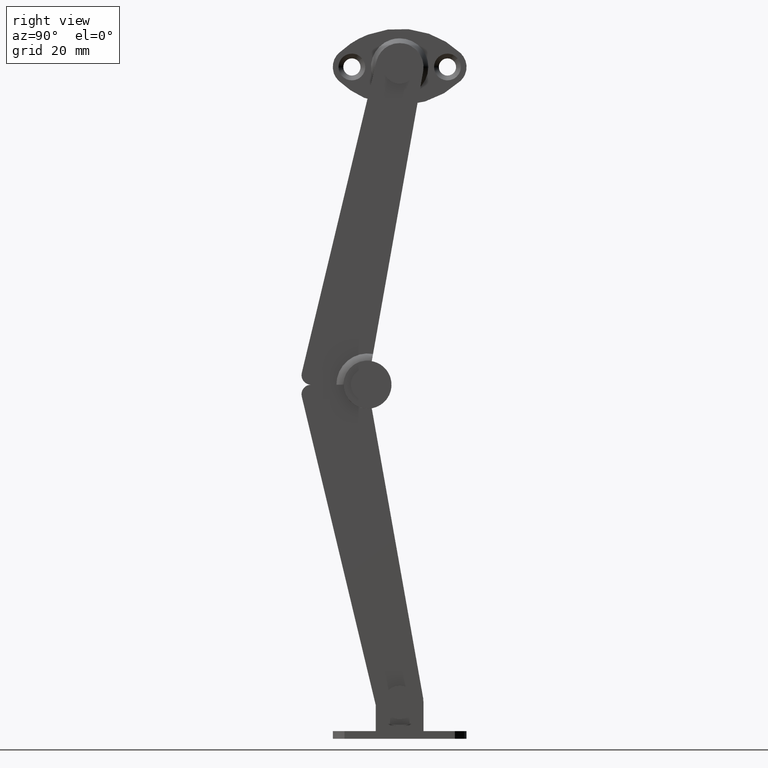
[diagram: clean part render]
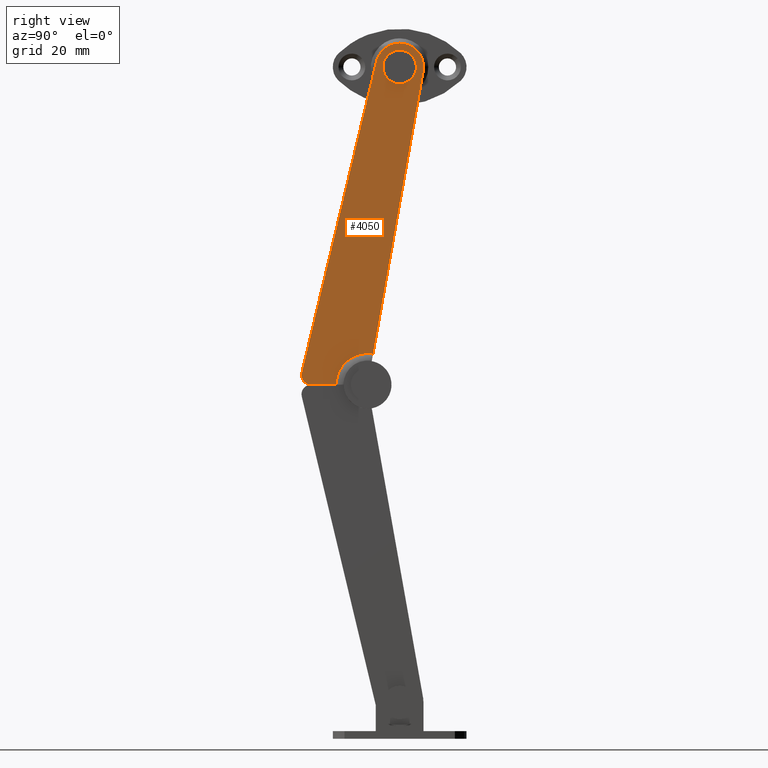
[diagram: same view with one face highlighted and labeled with its STEP entity id]
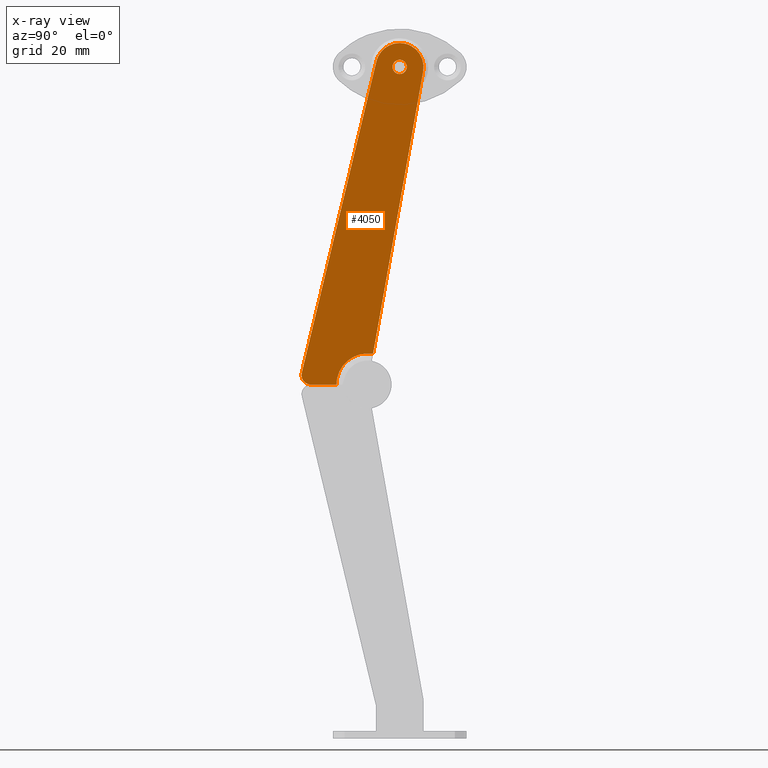
[diagram: x-ray of the same camera — body ghosted, the highlighted face saturated]
A machine part, right view. The second image highlights one B-rep face of the part: STEP entity #4050.
The next image is the same camera in x-ray: the body ghosted, the highlighted face saturated — about 0% of this face is hidden behind the body in this view.
In plain terms, the highlighted face is a freeform B-spline surface patch.
Its self-contained STEP definition (entity closure, byte-faithful):
#3359=CARTESIAN_POINT('',(7.099997999999999,1.105916866555809,67.513385768801243));
#3360=VERTEX_POINT('',#3359);
#3366=CARTESIAN_POINT('',(7.099997999999999,6.498705E-014,68.0));
#3367=VERTEX_POINT('',#3366);
#3368=CARTESIAN_POINT('',(7.099997999999999,1.105916866555809,67.513385768801243));
#3369=CARTESIAN_POINT('',(7.099997999999991,0.983490303701460,67.647201367064554));
#3370=CARTESIAN_POINT('',(7.099998000000005,0.647283021847330,67.901218537202709));
#3371=CARTESIAN_POINT('',(7.099998000000002,0.233254701580805,68.000448523563151));
#3372=CARTESIAN_POINT('',(7.099997999999999,6.498705E-014,68.0));
#3373=B_SPLINE_CURVE_WITH_KNOTS('',3,(#3368,#3369,#3370,#3371,#3372),.UNSPECIFIED.,.F.,.U.,(4,1,4),(0.000000109818222,0.544085645837434,1.243582495991023),.UNSPECIFIED.);
#3374=EDGE_CURVE('',#3360,#3367,#3373,.T.);
#3376=CARTESIAN_POINT('',(7.099997999999999,-1.499999999995145,66.499996209384861));
#3377=VERTEX_POINT('',#3376);
#3378=CARTESIAN_POINT('',(7.099997999999999,6.498705E-014,68.0));
#3379=CARTESIAN_POINT('',(7.099997999999986,-0.220957477144525,68.000330736097212));
#3380=CARTESIAN_POINT('',(7.099998000000055,-0.588814000005480,67.917141233669483));
#3381=CARTESIAN_POINT('',(7.099997999999930,-1.011692650551597,67.634487440824344));
#3382=CARTESIAN_POINT('',(7.099998000000051,-1.282787836130886,67.312306279088872));
#3383=CARTESIAN_POINT('',(7.099998000000010,-1.458089277904064,66.929482260045518));
#3384=CARTESIAN_POINT('',(7.099997999999976,-1.500068691653642,66.647264384445933));
#3385=CARTESIAN_POINT('',(7.099997999999999,-1.499999999995145,66.499996209384861));
#3386=B_SPLINE_CURVE_WITH_KNOTS('',3,(#3378,#3379,#3380,#3381,#3382,#3383,#3384,#3385),.UNSPECIFIED.,.F.,.U.,(4,1,1,1,1,4),(0.000000368194820,0.662703733674323,1.104530523547047,1.509450104083660,1.914465666483352,2.356255753075657),.UNSPECIFIED.);
#3387=EDGE_CURVE('',#3367,#3377,#3386,.T.);
#3389=CARTESIAN_POINT('',(7.099997999999999,6.498705E-014,65.0));
#3390=VERTEX_POINT('',#3389);
#3391=CARTESIAN_POINT('',(7.099997999999999,-1.499999999995145,66.499996209384861));
#3392=CARTESIAN_POINT('',(7.099998000000008,-1.500067145756067,66.352728005448171));
#3393=CARTESIAN_POINT('',(7.099997999999986,-1.458088048144873,66.070511578731470));
#3394=CARTESIAN_POINT('',(7.099997999999996,-1.267353537183385,65.653860360717090));
#3395=CARTESIAN_POINT('',(7.099998000000033,-0.983007581822493,65.340146730956192));
#3396=CARTESIAN_POINT('',(7.099997999999948,-0.551951161605771,65.074601951179943));
#3397=CARTESIAN_POINT('',(7.099998000000039,-0.220981676266878,64.999640210618367));
#3398=CARTESIAN_POINT('',(7.099997999999999,6.498705E-014,65.0));
#3399=B_SPLINE_CURVE_WITH_KNOTS('',3,(#3391,#3392,#3393,#3394,#3395,#3396,#3397,#3398),.UNSPECIFIED.,.F.,.U.,(4,1,1,1,1,4),(0.000000373359136,0.441789660024105,0.846804489909318,1.362205477117852,1.693549313995213,2.356251480062246),.UNSPECIFIED.);
#3400=EDGE_CURVE('',#3377,#3390,#3399,.T.);
#3402=CARTESIAN_POINT('',(7.099997999999999,1.074975964918606,65.453852862674211));
#3403=VERTEX_POINT('',#3402);
#3404=CARTESIAN_POINT('',(7.099997999999999,6.498705E-014,65.0));
#3405=CARTESIAN_POINT('',(7.099998000000021,0.249817103379251,64.999440932120891));
#3406=CARTESIAN_POINT('',(7.099997999999965,0.648676125841150,65.102159692469115));
#3407=CARTESIAN_POINT('',(7.099998000000013,0.970521827775686,65.346475116445646));
#3408=CARTESIAN_POINT('',(7.099997999999999,1.074975964918606,65.453852862674211));
#3409=B_SPLINE_CURVE_WITH_KNOTS('',3,(#3404,#3405,#3406,#3407,#3408),.UNSPECIFIED.,.F.,.U.,(4,1,4),(0.000000091365402,0.749056041377492,1.198513690536777),.UNSPECIFIED.);
#3410=EDGE_CURVE('',#3390,#3403,#3409,.T.);
#3445=CARTESIAN_POINT('',(7.099997999999999,1.499999999995276,66.500003790615153));
#3446=VERTEX_POINT('',#3445);
#3447=CARTESIAN_POINT('',(7.099997999999999,1.074975964918606,65.453852862674211));
#3448=CARTESIAN_POINT('',(7.099998000000007,1.218173954127868,65.600616113616013));
#3449=CARTESIAN_POINT('',(7.099997999999979,1.429279295602969,65.933307590974636));
#3450=CARTESIAN_POINT('',(7.099998000000022,1.500154333149060,66.319082243637936));
#3451=CARTESIAN_POINT('',(7.099997999999999,1.499999999995276,66.500003790615153));
#3452=B_SPLINE_CURVE_WITH_KNOTS('',3,(#3447,#3448,#3449,#3450,#3451),.UNSPECIFIED.,.F.,.U.,(4,1,4),(0.000000076971462,0.615028677415520,1.157743025367325),.UNSPECIFIED.);
#3453=EDGE_CURVE('',#3403,#3446,#3452,.T.);
#3455=CARTESIAN_POINT('',(7.099997999999999,1.499999999995276,66.500003790615153));
#3456=CARTESIAN_POINT('',(7.099998000000000,1.500116145782613,66.673878165291271));
#3457=CARTESIAN_POINT('',(7.099997999999999,1.434764324442270,67.044658712357929));
#3458=CARTESIAN_POINT('',(7.099998000000006,1.239206115528300,67.368250777206129));
#3459=CARTESIAN_POINT('',(7.099997999999999,1.105916866555809,67.513385768801243));
#3460=B_SPLINE_CURVE_WITH_KNOTS('',3,(#3455,#3456,#3457,#3458,#3459),.UNSPECIFIED.,.F.,.U.,(4,1,4),(0.000000079510350,0.521589012086127,1.112668617737891),.UNSPECIFIED.);
#3461=EDGE_CURVE('',#3446,#3360,#3460,.T.);
#3494=CARTESIAN_POINT('',(7.099998000000100,-5.572154147600330,6.446320199999280));
#3495=VERTEX_POINT('',#3494);
#3505=CARTESIAN_POINT('',(7.099997999999999,-13.256426457448740,0.000968127335394));
#3506=VERTEX_POINT('',#3505);
#3507=CARTESIAN_POINT('',(7.099998000000100,-5.572154147600330,6.446320199999280));
#3508=CARTESIAN_POINT('',(7.099998000000099,-6.304662943193113,6.576143400529178));
#3509=CARTESIAN_POINT('',(7.099998000000134,-7.481892925684850,6.580456580456730));
#3510=CARTESIAN_POINT('',(7.099998000000104,-8.983313283521470,6.178286763812061));
#3511=CARTESIAN_POINT('',(7.099998000000129,-10.115354307122740,5.637500164012192));
#3512=CARTESIAN_POINT('',(7.099998000000104,-11.005244105585151,4.979668536531144));
#3513=CARTESIAN_POINT('',(7.099998000000008,-11.856593378738451,4.102722822374485));
#3514=CARTESIAN_POINT('',(7.099998000000086,-12.610412420927300,2.985230211891081));
#3515=CARTESIAN_POINT('',(7.099998000000028,-13.142181632082179,1.518388459724126));
#3516=CARTESIAN_POINT('',(7.099998000000018,-13.256422154954050,0.477024367907574));
#3517=CARTESIAN_POINT('',(7.099997999999999,-13.256426457448740,0.000968127335394));
#3518=B_SPLINE_CURVE_WITH_KNOTS('',3,(#3507,#3508,#3509,#3510,#3511,#3512,#3513,#3514,#3515,#3516,#3517),.UNSPECIFIED.,.F.,.U.,(4,1,1,1,1,1,1,1,4),(0.000000196270234,2.231566059504232,3.481271302172373,4.641719786905073,5.980596577326767,6.783947777580294,8.301459637014826,9.997489184583831,11.425662684101811),.UNSPECIFIED.);
#3519=EDGE_CURVE('',#3495,#3506,#3518,.T.);
#3870=CARTESIAN_POINT('',(7.099997999999999,-20.488352710259999,2.463788323870585));
#3871=VERTEX_POINT('',#3870);
#3872=CARTESIAN_POINT('',(7.099997999999999,-18.606084933969299,0.000968127335394));
#3873=VERTEX_POINT('',#3872);
#3874=CARTESIAN_POINT('',(7.099997999999999,-20.488352710259999,2.463788323870585));
#3875=CARTESIAN_POINT('',(7.099997999999996,-20.526936968826870,2.302089710711798));
#3876=CARTESIAN_POINT('',(7.099998000000011,-20.565506832978588,1.950502548838590));
#3877=CARTESIAN_POINT('',(7.099997999999986,-20.488361181842681,1.452939687244369));
#3878=CARTESIAN_POINT('',(7.099998000000006,-20.298719859883590,1.008500026364678));
#3879=CARTESIAN_POINT('',(7.099997999999999,-20.037805956757659,0.646761385454530));
#3880=CARTESIAN_POINT('',(7.099998000000009,-19.675919441254521,0.326535151461768));
#3881=CARTESIAN_POINT('',(7.099997999999980,-19.194931144275120,0.079250988752500));
#3882=CARTESIAN_POINT('',(7.099998000000030,-18.809173232761321,0.007290973530493));
#3883=CARTESIAN_POINT('',(7.099997999999999,-18.606084933969299,0.000968127335394));
#3884=B_SPLINE_CURVE_WITH_KNOTS('',3,(#3874,#3875,#3876,#3877,#3878,#3879,#3880,#3881,#3882,#3883),.UNSPECIFIED.,.F.,.U.,(4,1,1,1,1,1,1,4),(0.000000371630924,0.498726017779062,1.052891639873539,1.496204926568805,1.939467731084730,2.382818861018615,2.937010103510368,3.546552521936530),.UNSPECIFIED.);
#3885=EDGE_CURVE('',#3871,#3873,#3884,.T.);
#3936=CARTESIAN_POINT('',(7.099997999999999,4.921107031915510,65.615023812553702));
#3937=VERTEX_POINT('',#3936);
#3943=CARTESIAN_POINT('',(7.099997999999999,4.921107031915510,65.615023812553702));
#3944=CARTESIAN_POINT('',(7.099998000000100,-5.572154147600330,6.446320199999280));
#3945=QUASI_UNIFORM_CURVE('',1,(#3943,#3944),.UNSPECIFIED.,.F.,.U.);
#3946=EDGE_CURVE('',#3937,#3495,#3945,.T.);
#3969=CARTESIAN_POINT('',(7.099997999999999,1.094657818442422,71.378739003897621));
#3970=VERTEX_POINT('',#3969);
#3971=CARTESIAN_POINT('',(7.099997999999999,-4.827430288942155,67.802297413259652));
#3972=VERTEX_POINT('',#3971);
#3973=CARTESIAN_POINT('',(7.099997999999999,1.094657818442422,71.378739003897621));
#3974=CARTESIAN_POINT('',(7.099998000000002,0.609344894074545,71.487835904659860));
#3975=CARTESIAN_POINT('',(7.099997999999990,-0.213391218878549,71.546409475374745));
#3976=CARTESIAN_POINT('',(7.099998000000016,-1.493147375390085,71.322515245565086));
#3977=CARTESIAN_POINT('',(7.099997999999960,-2.561444874431881,70.855772287107726));
#3978=CARTESIAN_POINT('',(7.099998000000036,-3.460558315424959,70.153834324720563));
#3979=CARTESIAN_POINT('',(7.099997999999959,-4.282193131436125,69.200479778509745));
#3980=CARTESIAN_POINT('',(7.099998000000023,-4.672369491613990,68.378764394440964));
#3981=CARTESIAN_POINT('',(7.099997999999999,-4.827430288942155,67.802297413259652));
#3982=B_SPLINE_CURVE_WITH_KNOTS('',3,(#3973,#3974,#3975,#3976,#3977,#3978,#3979,#3980,#3981),.UNSPECIFIED.,.F.,.U.,(4,1,1,1,1,1,4),(0.000000174050998,1.492208564430550,2.447252827291396,3.879711443130450,4.954151294084093,5.849496779613631,7.640157704867540),.UNSPECIFIED.);
#3983=EDGE_CURVE('',#3970,#3972,#3982,.T.);
#3985=CARTESIAN_POINT('',(7.099997999999999,4.921107031915510,65.615023812553702));
#3986=CARTESIAN_POINT('',(7.099998000000044,5.020126393783852,66.163315179128190));
#3987=CARTESIAN_POINT('',(7.099997999999943,5.028384214984842,66.990364789075286));
#3988=CARTESIAN_POINT('',(7.099998000000057,4.741606566812446,68.194004505140811));
#3989=CARTESIAN_POINT('',(7.099997999999982,4.334395091798886,69.066108945606317));
#3990=CARTESIAN_POINT('',(7.099997999999986,3.649464959882078,69.975012577515400));
#3991=CARTESIAN_POINT('',(7.099998000000049,2.645288174643137,70.838640979946959));
#3992=CARTESIAN_POINT('',(7.099997999999958,1.677214235443318,71.248514681731095));
#3993=CARTESIAN_POINT('',(7.099997999999999,1.094657818442422,71.378739003897621));
#3994=B_SPLINE_CURVE_WITH_KNOTS('',3,(#3985,#3986,#3987,#3988,#3989,#3990,#3991,#3992,#3993),.UNSPECIFIED.,.F.,.U.,(4,1,1,1,1,1,4),(0.000000174076197,1.671281713508753,2.447254891673493,3.700722214833011,4.536309882353478,5.849501713856602,7.640164149579405),.UNSPECIFIED.);
#3995=EDGE_CURVE('',#3937,#3970,#3994,.T.);
#4013=CARTESIAN_POINT('',(7.099997999999999,-20.488352710259999,2.463788323870585));
#4014=CARTESIAN_POINT('',(7.099997999999999,-4.827430288942155,67.802297413259652));
#4015=QUASI_UNIFORM_CURVE('',1,(#4013,#4014),.UNSPECIFIED.,.F.,.U.);
#4016=EDGE_CURVE('',#3871,#3972,#4015,.T.);
#4024=CARTESIAN_POINT('',(7.099998000000100,6.274255013176243,75.070631865791796));
#4025=CARTESIAN_POINT('',(7.099998000000100,-21.818664160902170,75.070631865791796));
#4026=CARTESIAN_POINT('',(7.099998000000100,6.274255013176243,-3.570374868710403));
#4027=CARTESIAN_POINT('',(7.099998000000100,-21.818664160902170,-3.570374868710403));
#4028=B_SPLINE_SURFACE_WITH_KNOTS('',1,1,((#4024,#4026),(#4025,#4027)),.UNSPECIFIED.,.F.,.F.,.U.,(2,2),(2,2),(0.0,28.092919174078411),(0.0,78.641006734502199),.UNSPECIFIED.);
#4029=ORIENTED_EDGE('',*,*,#3946,.F.);
#4030=ORIENTED_EDGE('',*,*,#3995,.T.);
#4031=ORIENTED_EDGE('',*,*,#3983,.T.);
#4032=ORIENTED_EDGE('',*,*,#4016,.F.);
#4033=ORIENTED_EDGE('',*,*,#3885,.T.);
#4034=CARTESIAN_POINT('',(7.099997999999999,-13.256426457448740,0.000968127335394));
#4035=CARTESIAN_POINT('',(7.099997999999999,-18.606084933969299,0.000968127335394));
#4036=QUASI_UNIFORM_CURVE('',1,(#4034,#4035),.UNSPECIFIED.,.F.,.U.);
#4037=EDGE_CURVE('',#3506,#3873,#4036,.T.);
#4038=ORIENTED_EDGE('',*,*,#4037,.F.);
#4039=ORIENTED_EDGE('',*,*,#3519,.F.);
#4040=EDGE_LOOP('',(#4029,#4030,#4031,#4032,#4033,#4038,#4039));
#4041=FACE_OUTER_BOUND('',#4040,.T.);
#4042=ORIENTED_EDGE('',*,*,#3387,.F.);
#4043=ORIENTED_EDGE('',*,*,#3374,.F.);
#4044=ORIENTED_EDGE('',*,*,#3461,.F.);
#4045=ORIENTED_EDGE('',*,*,#3453,.F.);
#4046=ORIENTED_EDGE('',*,*,#3410,.F.);
#4047=ORIENTED_EDGE('',*,*,#3400,.F.);
#4048=EDGE_LOOP('',(#4042,#4043,#4044,#4045,#4046,#4047));
#4049=FACE_BOUND('',#4048,.T.);
#4050=ADVANCED_FACE('',(#4041,#4049),#4028,.T.);